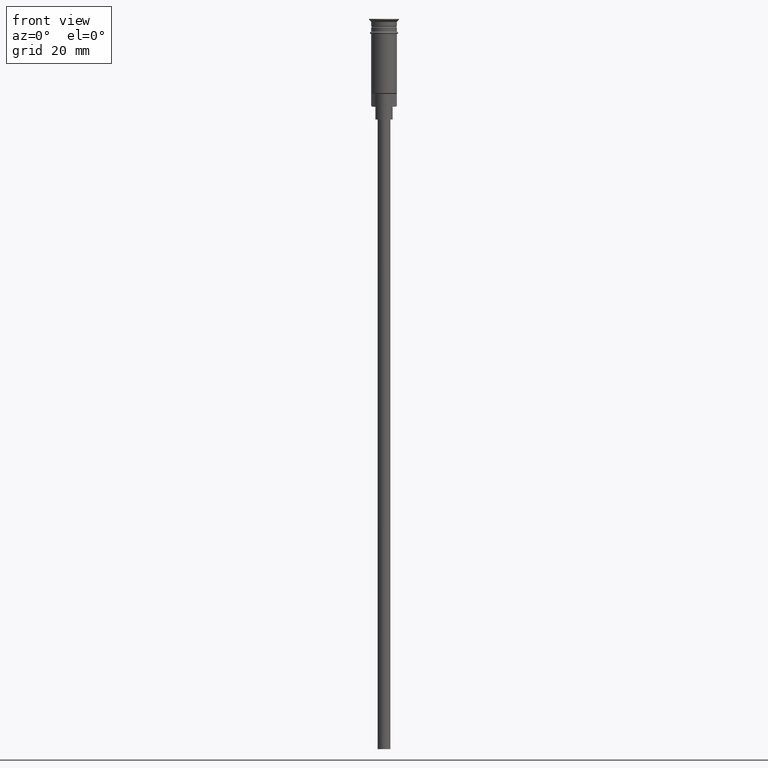
[diagram: clean part render]
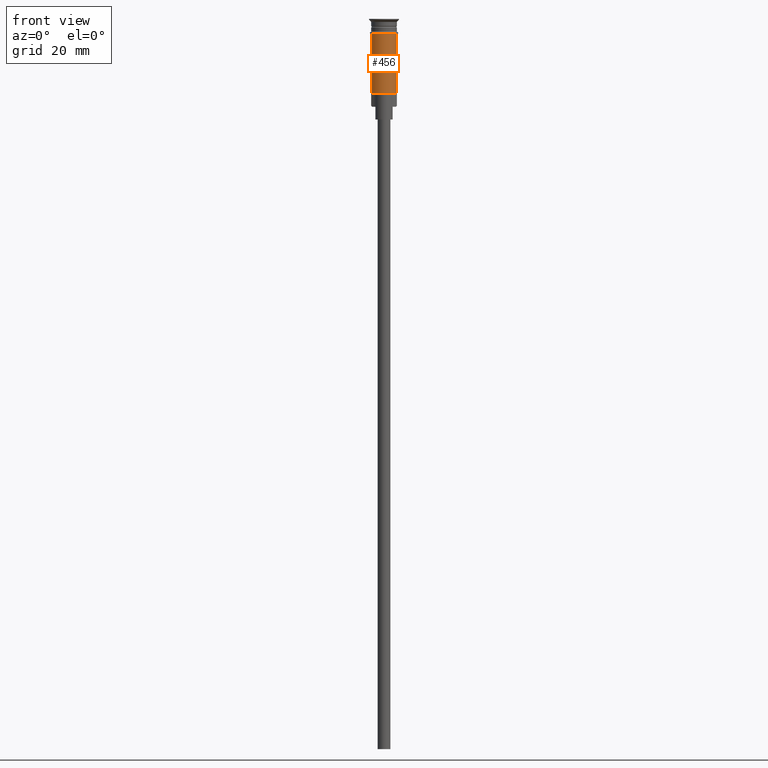
[diagram: same view with one face highlighted and labeled with its STEP entity id]
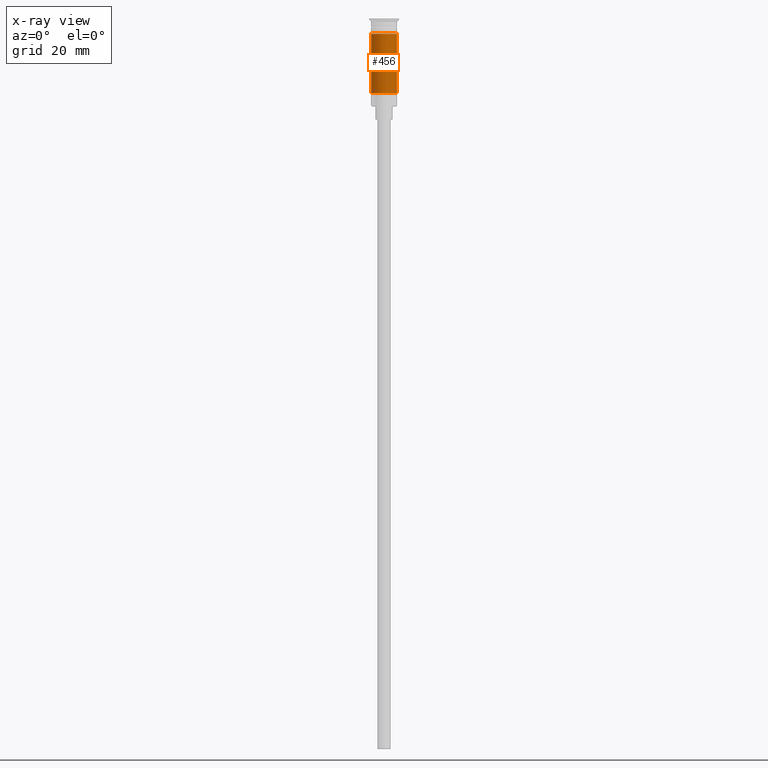
[diagram: x-ray of the same camera — body ghosted, the highlighted face saturated]
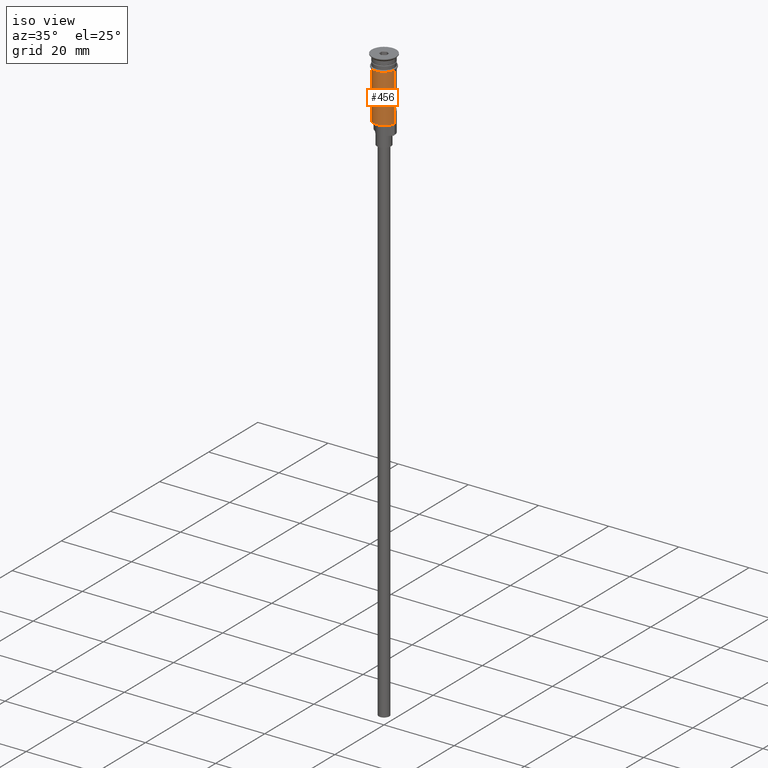
[diagram: same view with one face highlighted and labeled with its STEP entity id]
A machine part, front view. The second image highlights one B-rep face of the part: STEP entity #456.
The next image is the same camera in x-ray: the body ghosted, the highlighted face saturated — about 0% of this face is hidden behind the body in this view.
A second angle (iso view) of the same face is appended — the face is thin or edge-on in the first view.
In plain terms, the highlighted cylindrical surface (edge-blend (fillet) strip) has radius 3 mm, axis along (-0, -0, 1).
Its self-contained STEP definition (entity closure, byte-faithful):
#77 = CARTESIAN_POINT ( 'NONE',  ( -2.999999999999996891, 3.673940397442055924E-16, 0.000000000000000000 ) ) ;
#90 = AXIS2_PLACEMENT_3D ( 'NONE', #1444, #1189, #1428 ) ;
#118 = DIRECTION ( 'NONE',  ( -0.000000000000000000, -0.000000000000000000, 1.000000000000000000 ) ) ;
#292 = DIRECTION ( 'NONE',  ( -1.000000000000000000, 0.000000000000000000, 0.000000000000000000 ) ) ;
#297 = AXIS2_PLACEMENT_3D ( 'NONE', #1409, #1399, #292 ) ;
#336 = EDGE_CURVE ( 'NONE', #998, #1064, #759, .T. ) ;
#353 = CIRCLE ( 'NONE', #297, 2.999999999999996891 ) ;
#403 = DIRECTION ( 'NONE',  ( -0.000000000000000000, -0.000000000000000000, 1.000000000000000000 ) ) ;
#405 = ORIENTED_EDGE ( 'NONE', *, *, #1465, .T. ) ;
#456 = ADVANCED_FACE ( 'NONE', ( #826 ), #567, .T. ) ;
#518 = CARTESIAN_POINT ( 'NONE',  ( -2.999999999999995115, 0.000000000000000000, -17.30000000000000782 ) ) ;
#565 = VECTOR ( 'NONE', #403, 1000.000000000000000 ) ;
#567 = CYLINDRICAL_SURFACE ( 'NONE', #90, 2.999999999999996891 ) ;
#582 = CARTESIAN_POINT ( 'NONE',  ( -2.999999999999999112, 3.673940397442058389E-16, -3.499999999999998668 ) ) ;
#747 = CARTESIAN_POINT ( 'NONE',  ( 0.000000000000000000, 0.000000000000000000, -3.499999999999998668 ) ) ;
#759 = CIRCLE ( 'NONE', #1212, 2.999999999999998668 ) ;
#769 = LINE ( 'NONE', #1286, #565 ) ;
#789 = ORIENTED_EDGE ( 'NONE', *, *, #336, .F. ) ;
#826 = FACE_OUTER_BOUND ( 'NONE', #1246, .T. ) ;
#840 = CARTESIAN_POINT ( 'NONE',  ( 2.999999999999998668, 0.000000000000000000, -3.499999999999998668 ) ) ;
#895 = VECTOR ( 'NONE', #1328, 1000.000000000000000 ) ;
#998 = VERTEX_POINT ( 'NONE', #582 ) ;
#1002 = LINE ( 'NONE', #77, #895 ) ;
#1006 = VERTEX_POINT ( 'NONE', #1213 ) ;
#1027 = ORIENTED_EDGE ( 'NONE', *, *, #1244, .T. ) ;
#1064 = VERTEX_POINT ( 'NONE', #840 ) ;
#1172 = VERTEX_POINT ( 'NONE', #518 ) ;
#1189 = DIRECTION ( 'NONE',  ( -0.000000000000000000, -0.000000000000000000, 1.000000000000000000 ) ) ;
#1212 = AXIS2_PLACEMENT_3D ( 'NONE', #747, #118, #1496 ) ;
#1213 = CARTESIAN_POINT ( 'NONE',  ( 2.999999999999996891, 3.673940397442055924E-16, -17.30000000000000782 ) ) ;
#1244 = EDGE_CURVE ( 'NONE', #1172, #1006, #353, .T. ) ;
#1246 = EDGE_LOOP ( 'NONE', ( #1293, #1027, #405, #789 ) ) ;
#1286 = CARTESIAN_POINT ( 'NONE',  ( 2.999999999999996891, 0.000000000000000000, 0.000000000000000000 ) ) ;
#1293 = ORIENTED_EDGE ( 'NONE', *, *, #1597, .F. ) ;
#1328 = DIRECTION ( 'NONE',  ( -0.000000000000000000, -0.000000000000000000, 1.000000000000000000 ) ) ;
#1399 = DIRECTION ( 'NONE',  ( -0.000000000000000000, -0.000000000000000000, 1.000000000000000000 ) ) ;
#1409 = CARTESIAN_POINT ( 'NONE',  ( 0.000000000000000000, 0.000000000000000000, -17.30000000000000782 ) ) ;
#1428 = DIRECTION ( 'NONE',  ( 1.000000000000000000, 0.000000000000000000, 0.000000000000000000 ) ) ;
#1444 = CARTESIAN_POINT ( 'NONE',  ( 0.000000000000000000, 0.000000000000000000, 0.000000000000000000 ) ) ;
#1465 = EDGE_CURVE ( 'NONE', #1006, #1064, #769, .T. ) ;
#1496 = DIRECTION ( 'NONE',  ( 1.000000000000000000, 0.000000000000000000, 0.000000000000000000 ) ) ;
#1597 = EDGE_CURVE ( 'NONE', #1172, #998, #1002, .T. ) ;